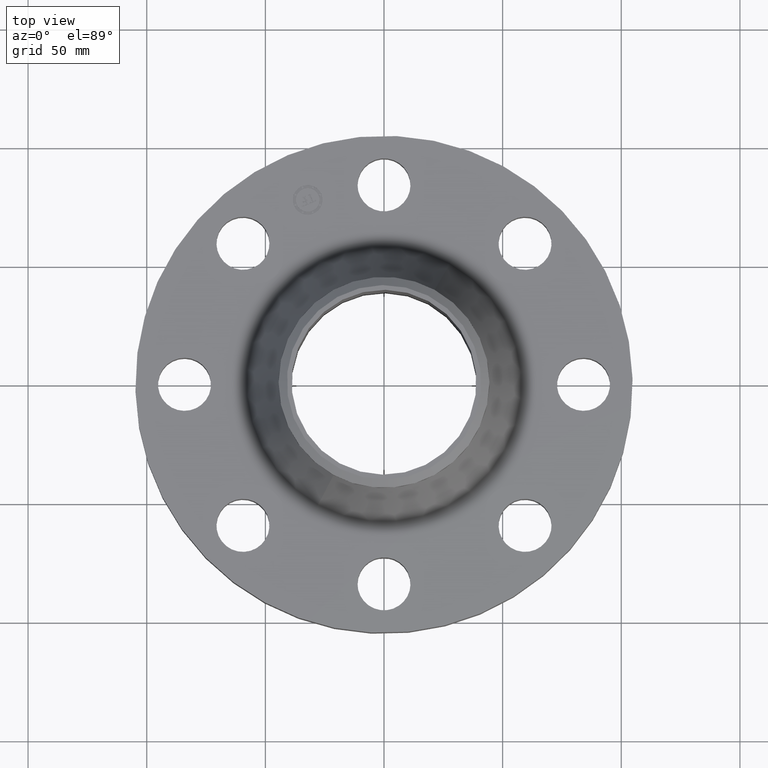
[diagram: clean part render]
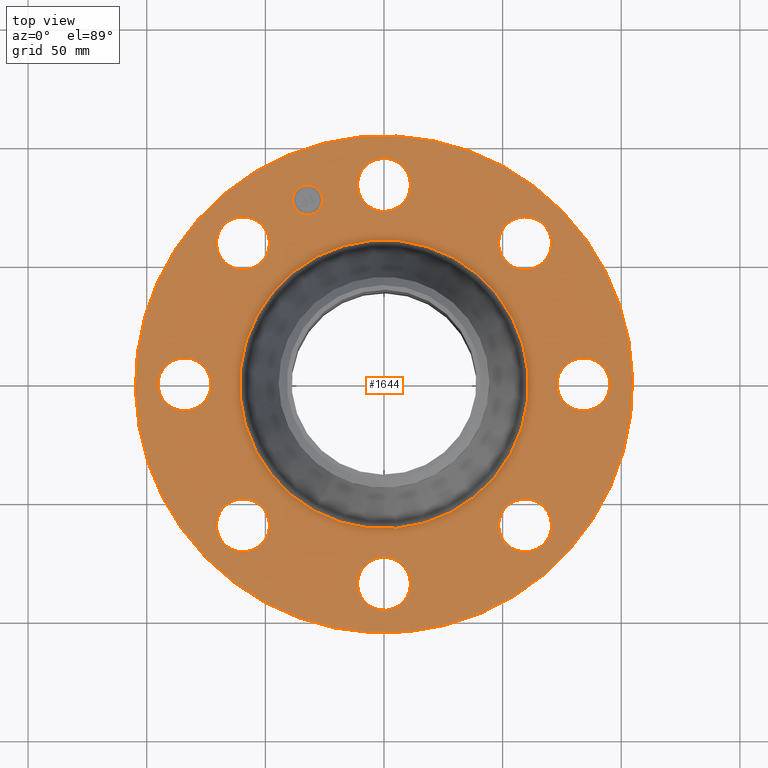
[diagram: same view with one face highlighted and labeled with its STEP entity id]
A machine part, top view. The second image highlights one B-rep face of the part: STEP entity #1644.
In plain terms, the highlighted planar face has unit normal (0, 0, -1).
Its self-contained STEP definition (entity closure, byte-faithful):
#65=AXIS2_PLACEMENT_3D('Circle Axis2P3D',#63,#64,$) ;
#118=AXIS2_PLACEMENT_3D('Circle Axis2P3D',#116,#117,$) ;
#193=AXIS2_PLACEMENT_3D('Circle Axis2P3D',#191,#192,$) ;
#217=AXIS2_PLACEMENT_3D('Circle Axis2P3D',#215,#216,$) ;
#234=AXIS2_PLACEMENT_3D('Circle Axis2P3D',#232,#233,$) ;
#269=AXIS2_PLACEMENT_3D('Circle Axis2P3D',#267,#268,$) ;
#990=AXIS2_PLACEMENT_3D('Circle Axis2P3D',#988,#989,$) ;
#1007=AXIS2_PLACEMENT_3D('Circle Axis2P3D',#1005,#1006,$) ;
#1042=AXIS2_PLACEMENT_3D('Circle Axis2P3D',#1040,#1041,$) ;
#1059=AXIS2_PLACEMENT_3D('Circle Axis2P3D',#1057,#1058,$) ;
#1094=AXIS2_PLACEMENT_3D('Circle Axis2P3D',#1092,#1093,$) ;
#1111=AXIS2_PLACEMENT_3D('Circle Axis2P3D',#1109,#1110,$) ;
#1146=AXIS2_PLACEMENT_3D('Circle Axis2P3D',#1144,#1145,$) ;
#1163=AXIS2_PLACEMENT_3D('Circle Axis2P3D',#1161,#1162,$) ;
#1198=AXIS2_PLACEMENT_3D('Circle Axis2P3D',#1196,#1197,$) ;
#1215=AXIS2_PLACEMENT_3D('Circle Axis2P3D',#1213,#1214,$) ;
#1250=AXIS2_PLACEMENT_3D('Circle Axis2P3D',#1248,#1249,$) ;
#1267=AXIS2_PLACEMENT_3D('Circle Axis2P3D',#1265,#1266,$) ;
#1302=AXIS2_PLACEMENT_3D('Circle Axis2P3D',#1300,#1301,$) ;
#1319=AXIS2_PLACEMENT_3D('Circle Axis2P3D',#1317,#1318,$) ;
#1584=AXIS2_PLACEMENT_3D('Plane Axis2P3D',#1581,#1582,#1583) ;
#1628=AXIS2_PLACEMENT_3D('Circle Axis2P3D',#1626,#1627,$) ;
#1637=AXIS2_PLACEMENT_3D('Circle Axis2P3D',#1635,#1636,$) ;
#46=CARTESIAN_POINT('Vertex',(-0.386136327233,3.520947237,1.06)) ;
#60=CARTESIAN_POINT('Vertex',(0.386136327233,3.09905276303,1.06)) ;
#63=CARTESIAN_POINT('Axis2P3D Location',(0.,3.31000000001,1.06)) ;
#116=CARTESIAN_POINT('Axis2P3D Location',(0.,3.31000000001,1.06)) ;
#188=CARTESIAN_POINT('Vertex',(-1.97763034675,-3.62002806781,1.06)) ;
#191=CARTESIAN_POINT('Axis2P3D Location',(0.,0.,1.06)) ;
#195=CARTESIAN_POINT('Vertex',(1.97763034675,3.62002806781,1.06)) ;
#215=CARTESIAN_POINT('Axis2P3D Location',(0.,0.,1.06)) ;
#232=CARTESIAN_POINT('Axis2P3D Location',(0.,0.,1.06)) ;
#236=CARTESIAN_POINT('Vertex',(1.14876916276,2.10280784752,1.06)) ;
#238=CARTESIAN_POINT('Vertex',(-1.14876916276,-2.10280784752,1.06)) ;
#267=CARTESIAN_POINT('Axis2P3D Location',(0.,0.,1.06)) ;
#978=CARTESIAN_POINT('Vertex',(-2.21664605203,-2.76272528293,1.06)) ;
#985=CARTESIAN_POINT('Vertex',(-2.46440083944,-1.91832160854,1.06)) ;
#988=CARTESIAN_POINT('Axis2P3D Location',(-2.34052344574,-2.34052344574,1.06)) ;
#1005=CARTESIAN_POINT('Axis2P3D Location',(-2.34052344574,-2.34052344574,1.06)) ;
#1030=CARTESIAN_POINT('Vertex',(0.386136327233,-3.520947237,1.06)) ;
#1037=CARTESIAN_POINT('Vertex',(-0.386136327233,-3.09905276303,1.06)) ;
#1040=CARTESIAN_POINT('Axis2P3D Location',(4.05358090519E-016,-3.31000000001,1.06)) ;
#1057=CARTESIAN_POINT('Axis2P3D Location',(4.05358090519E-016,-3.31000000001,1.06)) ;
#1082=CARTESIAN_POINT('Vertex',(-3.520947237,-0.386136327233,1.06)) ;
#1089=CARTESIAN_POINT('Vertex',(-3.09905276303,0.386136327233,1.06)) ;
#1092=CARTESIAN_POINT('Axis2P3D Location',(-3.31000000001,-6.08037135779E-016,1.06)) ;
#1109=CARTESIAN_POINT('Axis2P3D Location',(-3.31000000001,-6.08037135779E-016,1.06)) ;
#1134=CARTESIAN_POINT('Vertex',(2.21664605203,2.76272528293,1.06)) ;
#1141=CARTESIAN_POINT('Vertex',(2.46440083944,1.91832160854,1.06)) ;
#1144=CARTESIAN_POINT('Axis2P3D Location',(2.34052344574,2.34052344574,1.06)) ;
#1161=CARTESIAN_POINT('Axis2P3D Location',(2.34052344574,2.34052344574,1.06)) ;
#1186=CARTESIAN_POINT('Vertex',(2.76272528293,-2.21664605203,1.06)) ;
#1193=CARTESIAN_POINT('Vertex',(1.91832160854,-2.46440083944,1.06)) ;
#1196=CARTESIAN_POINT('Axis2P3D Location',(2.34052344574,-2.34052344574,1.06)) ;
#1213=CARTESIAN_POINT('Axis2P3D Location',(2.34052344574,-2.34052344574,1.06)) ;
#1238=CARTESIAN_POINT('Vertex',(3.520947237,0.386136327233,1.06)) ;
#1245=CARTESIAN_POINT('Vertex',(3.09905276303,-0.386136327233,1.06)) ;
#1248=CARTESIAN_POINT('Axis2P3D Location',(3.31000000001,2.0267904526E-016,1.06)) ;
#1265=CARTESIAN_POINT('Axis2P3D Location',(3.31000000001,2.0267904526E-016,1.06)) ;
#1290=CARTESIAN_POINT('Vertex',(-2.76272528293,2.21664605203,1.06)) ;
#1297=CARTESIAN_POINT('Vertex',(-1.91832160854,2.46440083944,1.06)) ;
#1300=CARTESIAN_POINT('Axis2P3D Location',(-2.34052344574,2.34052344574,1.06)) ;
#1317=CARTESIAN_POINT('Axis2P3D Location',(-2.34052344574,2.34052344574,1.06)) ;
#1581=CARTESIAN_POINT('Axis2P3D Location',(0.,4.12500000002,1.06)) ;
#1626=CARTESIAN_POINT('Axis2P3D Location',(-1.26668216113,3.05804125262,1.06)) ;
#1630=CARTESIAN_POINT('Vertex',(-1.49534234543,2.96332710311,1.06)) ;
#1632=CARTESIAN_POINT('Vertex',(-1.03802197684,3.15275540214,1.06)) ;
#1635=CARTESIAN_POINT('Axis2P3D Location',(-1.26668216113,3.05804125262,1.06)) ;
#64=DIRECTION('Axis2P3D Direction',(0.,-0.,-0.0393700787402)) ;
#117=DIRECTION('Axis2P3D Direction',(0.,-0.,-0.0393700787402)) ;
#192=DIRECTION('Axis2P3D Direction',(0.,0.,-0.0393700787402)) ;
#216=DIRECTION('Axis2P3D Direction',(0.,0.,-0.0393700787402)) ;
#233=DIRECTION('Axis2P3D Direction',(0.,0.,-0.0393700787402)) ;
#268=DIRECTION('Axis2P3D Direction',(0.,0.,-0.0393700787402)) ;
#989=DIRECTION('Axis2P3D Direction',(0.,0.,-0.0393700787402)) ;
#1006=DIRECTION('Axis2P3D Direction',(0.,0.,-0.0393700787402)) ;
#1041=DIRECTION('Axis2P3D Direction',(-0.,0.,-0.0393700787402)) ;
#1058=DIRECTION('Axis2P3D Direction',(-0.,0.,-0.0393700787402)) ;
#1093=DIRECTION('Axis2P3D Direction',(0.,0.,-0.0393700787402)) ;
#1110=DIRECTION('Axis2P3D Direction',(0.,0.,-0.0393700787402)) ;
#1145=DIRECTION('Axis2P3D Direction',(0.,-0.,-0.0393700787402)) ;
#1162=DIRECTION('Axis2P3D Direction',(0.,-0.,-0.0393700787402)) ;
#1197=DIRECTION('Axis2P3D Direction',(-0.,0.,-0.0393700787402)) ;
#1214=DIRECTION('Axis2P3D Direction',(-0.,0.,-0.0393700787402)) ;
#1249=DIRECTION('Axis2P3D Direction',(0.,-0.,-0.0393700787402)) ;
#1266=DIRECTION('Axis2P3D Direction',(0.,-0.,-0.0393700787402)) ;
#1301=DIRECTION('Axis2P3D Direction',(0.,0.,-0.0393700787402)) ;
#1318=DIRECTION('Axis2P3D Direction',(0.,0.,-0.0393700787402)) ;
#1582=DIRECTION('Axis2P3D Direction',(0.,0.,-0.0393700787402)) ;
#1583=DIRECTION('Axis2P3D XDirection',(0.0393700787402,0.,0.)) ;
#1627=DIRECTION('Axis2P3D Direction',(0.,0.,-0.0393700787402)) ;
#1636=DIRECTION('Axis2P3D Direction',(0.,0.,-0.0393700787402)) ;
#1587=ORIENTED_EDGE('',*,*,#219,.F.) ;
#1588=ORIENTED_EDGE('',*,*,#197,.F.) ;
#1591=ORIENTED_EDGE('',*,*,#67,.T.) ;
#1592=ORIENTED_EDGE('',*,*,#120,.T.) ;
#1595=ORIENTED_EDGE('',*,*,#271,.T.) ;
#1596=ORIENTED_EDGE('',*,*,#240,.T.) ;
#1599=ORIENTED_EDGE('',*,*,#1165,.T.) ;
#1600=ORIENTED_EDGE('',*,*,#1148,.T.) ;
#1603=ORIENTED_EDGE('',*,*,#1269,.T.) ;
#1604=ORIENTED_EDGE('',*,*,#1252,.T.) ;
#1607=ORIENTED_EDGE('',*,*,#1217,.T.) ;
#1608=ORIENTED_EDGE('',*,*,#1200,.T.) ;
#1611=ORIENTED_EDGE('',*,*,#1061,.T.) ;
#1612=ORIENTED_EDGE('',*,*,#1044,.T.) ;
#1615=ORIENTED_EDGE('',*,*,#1009,.T.) ;
#1616=ORIENTED_EDGE('',*,*,#992,.T.) ;
#1619=ORIENTED_EDGE('',*,*,#1113,.T.) ;
#1620=ORIENTED_EDGE('',*,*,#1096,.T.) ;
#1623=ORIENTED_EDGE('',*,*,#1321,.T.) ;
#1624=ORIENTED_EDGE('',*,*,#1304,.T.) ;
#1641=ORIENTED_EDGE('',*,*,#1634,.T.) ;
#1642=ORIENTED_EDGE('',*,*,#1639,.T.) ;
#1593=FACE_BOUND('',#1590,.T.) ;
#1597=FACE_BOUND('',#1594,.T.) ;
#1601=FACE_BOUND('',#1598,.T.) ;
#1605=FACE_BOUND('',#1602,.T.) ;
#1609=FACE_BOUND('',#1606,.T.) ;
#1613=FACE_BOUND('',#1610,.T.) ;
#1617=FACE_BOUND('',#1614,.T.) ;
#1621=FACE_BOUND('',#1618,.T.) ;
#1625=FACE_BOUND('',#1622,.T.) ;
#1643=FACE_BOUND('',#1640,.T.) ;
#1644=ADVANCED_FACE('PartBody',(#1589,#1593,#1597,#1601,#1605,#1609,#1613,#1617,#1621,#1625,#1643),#1585,.F.) ;
#66=CIRCLE('generated circle',#65,0.440000000002) ;
#119=CIRCLE('generated circle',#118,0.440000000002) ;
#194=CIRCLE('generated circle',#193,4.12500000002) ;
#218=CIRCLE('generated circle',#217,4.12500000002) ;
#235=CIRCLE('generated circle',#234,2.39613677258) ;
#270=CIRCLE('generated circle',#269,2.39613677258) ;
#991=CIRCLE('generated circle',#990,0.440000000002) ;
#1008=CIRCLE('generated circle',#1007,0.440000000002) ;
#1043=CIRCLE('generated circle',#1042,0.440000000002) ;
#1060=CIRCLE('generated circle',#1059,0.440000000002) ;
#1095=CIRCLE('generated circle',#1094,0.440000000002) ;
#1112=CIRCLE('generated circle',#1111,0.440000000002) ;
#1147=CIRCLE('generated circle',#1146,0.440000000002) ;
#1164=CIRCLE('generated circle',#1163,0.440000000002) ;
#1199=CIRCLE('generated circle',#1198,0.440000000002) ;
#1216=CIRCLE('generated circle',#1215,0.440000000002) ;
#1251=CIRCLE('generated circle',#1250,0.440000000002) ;
#1268=CIRCLE('generated circle',#1267,0.440000000002) ;
#1303=CIRCLE('generated circle',#1302,0.440000000002) ;
#1320=CIRCLE('generated circle',#1319,0.440000000002) ;
#1629=CIRCLE('generated circle',#1628,0.247500000001) ;
#1638=CIRCLE('generated circle',#1637,0.247500000001) ;
#67=EDGE_CURVE('',#47,#61,#66,.T.) ;
#120=EDGE_CURVE('',#61,#47,#119,.T.) ;
#197=EDGE_CURVE('',#189,#196,#194,.T.) ;
#219=EDGE_CURVE('',#196,#189,#218,.T.) ;
#240=EDGE_CURVE('',#237,#239,#235,.T.) ;
#271=EDGE_CURVE('',#239,#237,#270,.T.) ;
#992=EDGE_CURVE('',#979,#986,#991,.T.) ;
#1009=EDGE_CURVE('',#986,#979,#1008,.T.) ;
#1044=EDGE_CURVE('',#1031,#1038,#1043,.T.) ;
#1061=EDGE_CURVE('',#1038,#1031,#1060,.T.) ;
#1096=EDGE_CURVE('',#1083,#1090,#1095,.T.) ;
#1113=EDGE_CURVE('',#1090,#1083,#1112,.T.) ;
#1148=EDGE_CURVE('',#1135,#1142,#1147,.T.) ;
#1165=EDGE_CURVE('',#1142,#1135,#1164,.T.) ;
#1200=EDGE_CURVE('',#1187,#1194,#1199,.T.) ;
#1217=EDGE_CURVE('',#1194,#1187,#1216,.T.) ;
#1252=EDGE_CURVE('',#1239,#1246,#1251,.T.) ;
#1269=EDGE_CURVE('',#1246,#1239,#1268,.T.) ;
#1304=EDGE_CURVE('',#1291,#1298,#1303,.T.) ;
#1321=EDGE_CURVE('',#1298,#1291,#1320,.T.) ;
#1634=EDGE_CURVE('',#1631,#1633,#1629,.T.) ;
#1639=EDGE_CURVE('',#1633,#1631,#1638,.T.) ;
#1586=EDGE_LOOP('',(#1587,#1588)) ;
#1590=EDGE_LOOP('',(#1591,#1592)) ;
#1594=EDGE_LOOP('',(#1595,#1596)) ;
#1598=EDGE_LOOP('',(#1599,#1600)) ;
#1602=EDGE_LOOP('',(#1603,#1604)) ;
#1606=EDGE_LOOP('',(#1607,#1608)) ;
#1610=EDGE_LOOP('',(#1611,#1612)) ;
#1614=EDGE_LOOP('',(#1615,#1616)) ;
#1618=EDGE_LOOP('',(#1619,#1620)) ;
#1622=EDGE_LOOP('',(#1623,#1624)) ;
#1640=EDGE_LOOP('',(#1641,#1642)) ;
#1589=FACE_OUTER_BOUND('',#1586,.T.) ;
#1585=PLANE('',#1584) ;
#47=VERTEX_POINT('',#46) ;
#61=VERTEX_POINT('',#60) ;
#189=VERTEX_POINT('',#188) ;
#196=VERTEX_POINT('',#195) ;
#237=VERTEX_POINT('',#236) ;
#239=VERTEX_POINT('',#238) ;
#979=VERTEX_POINT('',#978) ;
#986=VERTEX_POINT('',#985) ;
#1031=VERTEX_POINT('',#1030) ;
#1038=VERTEX_POINT('',#1037) ;
#1083=VERTEX_POINT('',#1082) ;
#1090=VERTEX_POINT('',#1089) ;
#1135=VERTEX_POINT('',#1134) ;
#1142=VERTEX_POINT('',#1141) ;
#1187=VERTEX_POINT('',#1186) ;
#1194=VERTEX_POINT('',#1193) ;
#1239=VERTEX_POINT('',#1238) ;
#1246=VERTEX_POINT('',#1245) ;
#1291=VERTEX_POINT('',#1290) ;
#1298=VERTEX_POINT('',#1297) ;
#1631=VERTEX_POINT('',#1630) ;
#1633=VERTEX_POINT('',#1632) ;